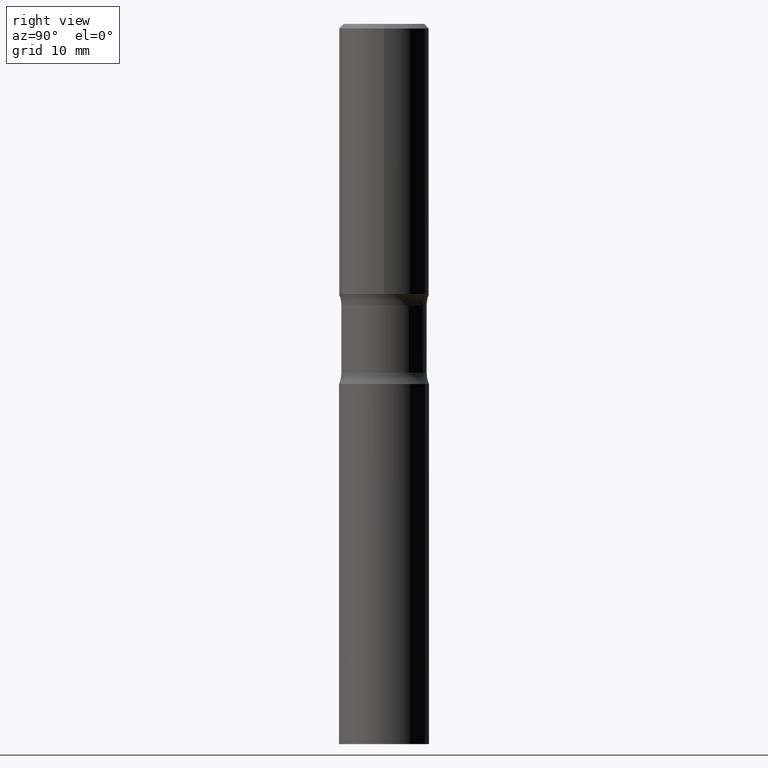
[diagram: clean part render]
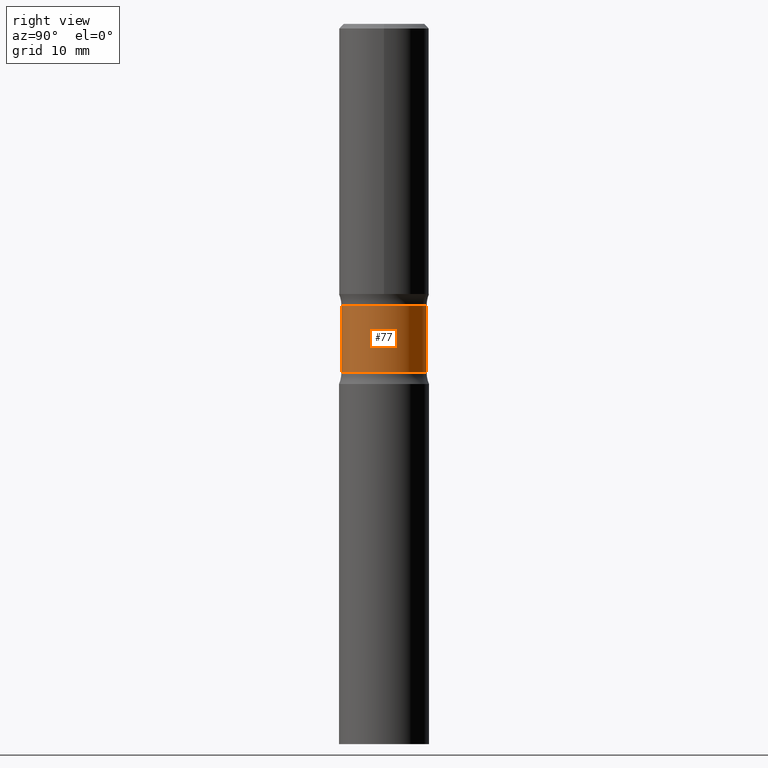
[diagram: same view with one face highlighted and labeled with its STEP entity id]
A machine part, right view. The second image highlights one B-rep face of the part: STEP entity #77.
In plain terms, the highlighted cylindrical surface (partial cylindrical patch) has radius 4.7371 mm, axis along (0, -0, -1).
Its self-contained STEP definition (entity closure, byte-faithful):
#28 = CARTESIAN_POINT ( 'NONE',  ( 2.998087953510655377E-29, -4.314929469621585971E-15, -1.230903388438940427 ) ) ;
#29 = ORIENTED_EDGE ( 'NONE', *, *, #141, .F. ) ;
#30 = DIRECTION ( 'NONE',  ( 6.982962677686265922E-15, 1.000000000000000000, -2.929595703661408850E-15 ) ) ;
#51 = LINE ( 'NONE', #248, #355 ) ;
#55 = CYLINDRICAL_SURFACE ( 'NONE', #501, 0.1865000000000000546 ) ;
#60 = CARTESIAN_POINT ( 'NONE',  ( 1.302322539388566302E-15, 0.1864999999999891189, -3.149600000000000399 ) ) ;
#70 = DIRECTION ( 'NONE',  ( 6.982962677686265922E-15, 1.000000000000000000, -2.929595703661407273E-15 ) ) ;
#77 = ADVANCED_FACE ( 'NONE', ( #409 ), #55, .T. ) ;
#89 = CIRCLE ( 'NONE', #420, 0.1865000000000000824 ) ;
#120 = CARTESIAN_POINT ( 'NONE',  ( -1.314985953722828706E-15, -0.1865000000000042735, -1.230903388438939983 ) ) ;
#141 = EDGE_CURVE ( 'NONE', #302, #423, #89, .T. ) ;
#150 = CARTESIAN_POINT ( 'NONE',  ( 7.747190482160426523E-29, -1.093241022283855548E-14, -3.149599999999999511 ) ) ;
#154 = DIRECTION ( 'NONE',  ( 2.475171165693508831E-29, -3.448945869473840543E-15, -1.000000000000000000 ) ) ;
#155 = AXIS2_PLACEMENT_3D ( 'NONE', #28, #301, #30 ) ;
#158 = CARTESIAN_POINT ( 'NONE',  ( 3.726019019408391277E-29, -5.329241076748865577E-15, -1.524996611561059146 ) ) ;
#171 = EDGE_CURVE ( 'NONE', #414, #191, #465, .T. ) ;
#187 = ORIENTED_EDGE ( 'NONE', *, *, #171, .T. ) ;
#191 = VERTEX_POINT ( 'NONE', #120 ) ;
#196 = VECTOR ( 'NONE', #494, 39.37007874015748143 ) ;
#206 = CARTESIAN_POINT ( 'NONE',  ( 1.302322539388526465E-15, 0.1864999999999947533, -1.524996611561059812 ) ) ;
#248 = CARTESIAN_POINT ( 'NONE',  ( -1.279482876584313248E-15, -0.1865000000000109626, -3.149599999999999067 ) ) ;
#301 = DIRECTION ( 'NONE',  ( 2.475171165693508831E-29, -3.448945869473840543E-15, -1.000000000000000000 ) ) ;
#302 = VERTEX_POINT ( 'NONE', #206 ) ;
#307 = ORIENTED_EDGE ( 'NONE', *, *, #436, .F. ) ;
#330 = CARTESIAN_POINT ( 'NONE',  ( -1.314985953722820620E-15, -0.1865000000000054114, -1.524996611561058701 ) ) ;
#332 = LINE ( 'NONE', #60, #196 ) ;
#348 = DIRECTION ( 'NONE',  ( 2.475171165693508831E-29, -3.448945869473840543E-15, -1.000000000000000000 ) ) ;
#355 = VECTOR ( 'NONE', #449, 39.37007874015748143 ) ;
#367 = CARTESIAN_POINT ( 'NONE',  ( 1.302322539388518576E-15, 0.1864999999999956692, -1.230903388438941093 ) ) ;
#376 = ORIENTED_EDGE ( 'NONE', *, *, #491, .T. ) ;
#392 = EDGE_LOOP ( 'NONE', ( #187, #376, #29, #307 ) ) ;
#409 = FACE_OUTER_BOUND ( 'NONE', #392, .T. ) ;
#414 = VERTEX_POINT ( 'NONE', #367 ) ;
#420 = AXIS2_PLACEMENT_3D ( 'NONE', #158, #154, #426 ) ;
#423 = VERTEX_POINT ( 'NONE', #330 ) ;
#426 = DIRECTION ( 'NONE',  ( 6.982962677686265922E-15, 1.000000000000000000, -2.929595703661406878E-15 ) ) ;
#436 = EDGE_CURVE ( 'NONE', #414, #302, #332, .T. ) ;
#449 = DIRECTION ( 'NONE',  ( 2.475171165693509111E-29, -3.448945869473840543E-15, -1.000000000000000000 ) ) ;
#465 = CIRCLE ( 'NONE', #155, 0.1864999999999999714 ) ;
#491 = EDGE_CURVE ( 'NONE', #191, #423, #51, .T. ) ;
#494 = DIRECTION ( 'NONE',  ( 2.475171165693509111E-29, -3.448945869473840543E-15, -1.000000000000000000 ) ) ;
#501 = AXIS2_PLACEMENT_3D ( 'NONE', #150, #348, #70 ) ;